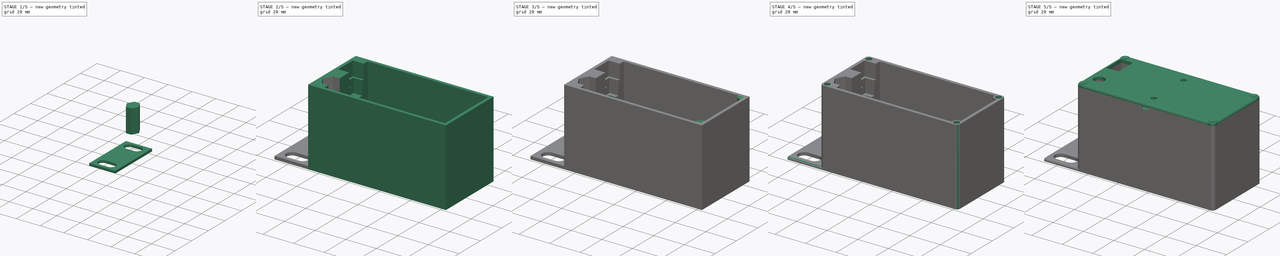
[diagram: build sequence overview — one tinted view per stage of 5, left to right]
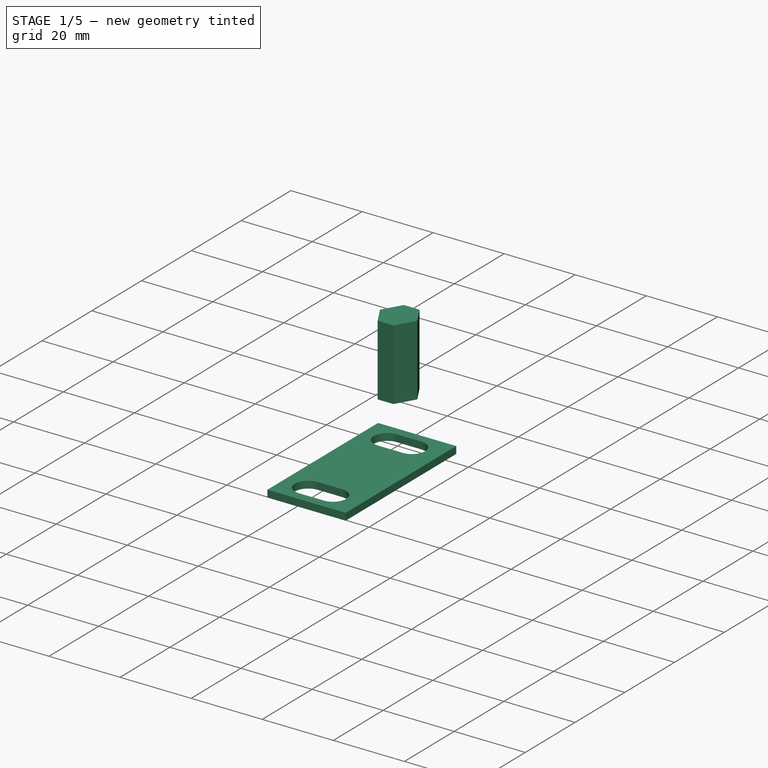
[diagram: stage 1 of 5 — iso view after this stage's code; geometry added in this stage tinted green]
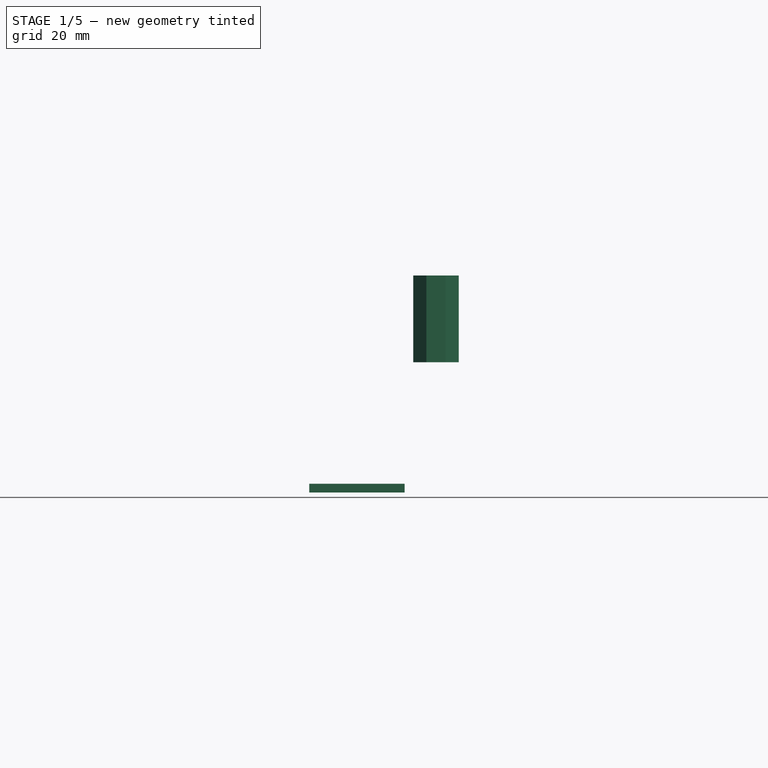
[diagram: stage 1 of 5 — front view after this stage's code; geometry added in this stage tinted green]
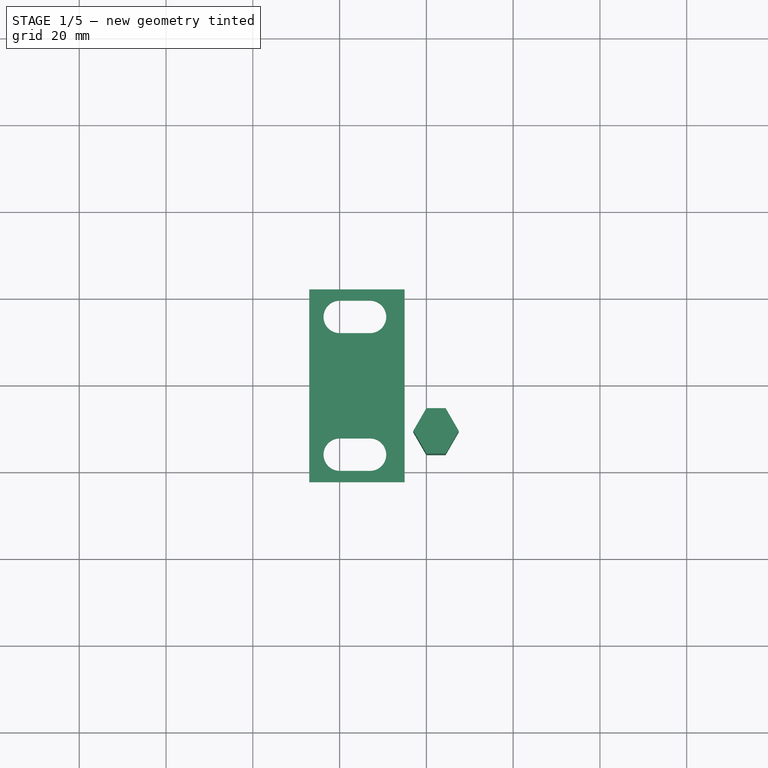
[diagram: stage 1 of 5 — top view after this stage's code; geometry added in this stage tinted green]
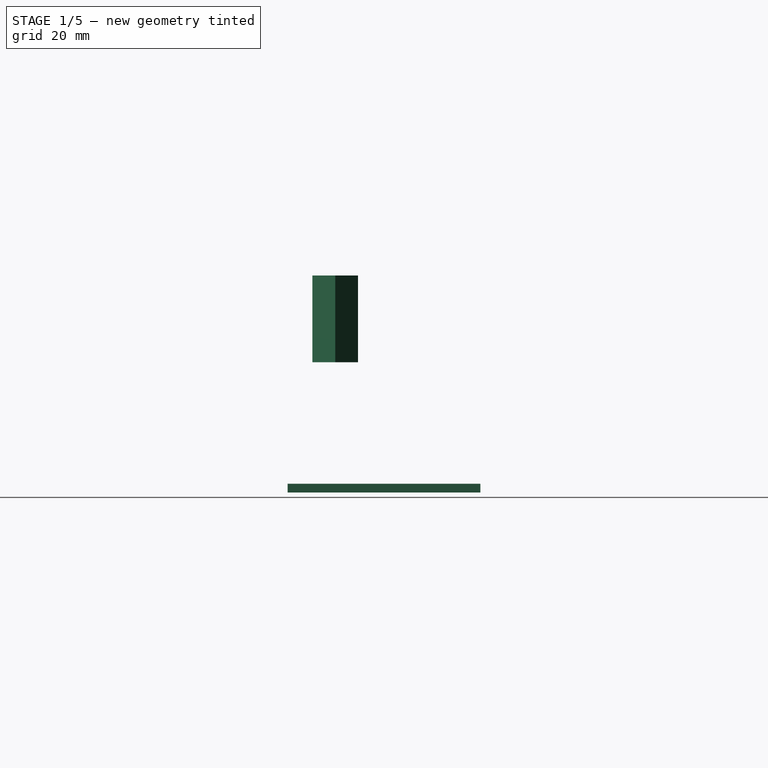
[diagram: stage 1 of 5 — right view after this stage's code; geometry added in this stage tinted green]
FCSTD DOCUMENT  (FreeCAD 0.21R33694 (Git))
Label: rack-controller-box
License: All rights reserved
LicenseURL: https://en.wikipedia.org/wiki/All_rights_reserved
objects: Sketcher::SketchObject×15, Part::Extrusion×15, Part::Cut×11, Part::Fillet×7, Part::MultiFuse×5, Part::Mirroring×4, Part::Fuse×1, Part::Chamfer×1, PartDesign::Body×1
note: 60 computed .brp shape members not serialized (recipe doc carries the construction recipe); baked Part::Feature solids carry a one-line shape summary decoded from their .brp

FEATURE [Sketcher::SketchObject] Sketch  label="Core001"
  FullyConstrained = true
  MapMode = 5
  Support = -> [XY_Plane]
  sketch-geometry (4):
    g0: LineSegment StartX=-45 StartY=22.225 StartZ=0 EndX=45 EndY=22.225 EndZ=0
    g1: LineSegment StartX=45 StartY=22.225 StartZ=0 EndX=45 EndY=-22.225 EndZ=0
    g2: LineSegment StartX=45 StartY=-22.225 StartZ=0 EndX=-45 EndY=-22.225 EndZ=0
    g3: LineSegment StartX=-45 StartY=-22.225 StartZ=0 EndX=-45 EndY=22.225 EndZ=0
  constraints (10):
    c: Coincident(g0,g1)
    c: Coincident(g1,g2)
    c: Coincident(g2,g3)
    c: Coincident(g3,g0)
    c: Horizontal(g2)
    c: Vertical(g1)
    c: Symmetric(g0,g2,g-1)
    c: Symmetric(g0,g0,g-2)
    c: DistanceX(g0,g0) = 90
    c: DistanceY(g1,g1) = 44.45
FEATURE [Part::Extrusion] Extrude  label="Core"
  Base = -> Sketch
  Dir = (0,0,1)
  DirMode = 2
  FaceMakerClass = Part::FaceMakerBullseye
  LengthFwd = 50
  LengthRev = 0
  Solid = true
  Symmetric = false
FEATURE [Sketcher::SketchObject] Sketch001  label="Display"
  FullyConstrained = true
  MapMode = 5
  Support = -> [XY_Plane]
  sketch-geometry (4):
    g0: LineSegment StartX=-12.5 StartY=6.5 StartZ=0 EndX=12.5 EndY=6.5 EndZ=0
    g1: LineSegment StartX=12.5 StartY=6.5 StartZ=0 EndX=12.5 EndY=-6.5 EndZ=0
    g2: LineSegment StartX=12.5 StartY=-6.5 StartZ=0 EndX=-12.5 EndY=-6.5 EndZ=0
    g3: LineSegment StartX=-12.5 StartY=-6.5 StartZ=0 EndX=-12.5 EndY=6.5 EndZ=0
  constraints (10):
    c: Coincident(g0,g1)
    c: Coincident(g1,g2)
    c: Coincident(g2,g3)
    c: Coincident(g3,g0)
    c: Horizontal(g2)
    c: Vertical(g1)
    c: Symmetric(g0,g2,g-1)
    c: Symmetric(g0,g0,g-2)
    c: DistanceX(g0,g0) = 25
    c: DistanceY(g1,g1) = 13
FEATURE [Part::Extrusion] Extrude001  label="Display Hole"
  Base = -> Sketch001
  Dir = (0,0,1)
  DirMode = 2
  FaceMakerClass = Part::FaceMakerBullseye
  LengthFwd = 10
  LengthRev = 0
  Solid = true
  Symmetric = false
FEATURE [Part::Cut] Cut  label="Core with display"
  Base = -> Extrude
  Tool = -> Extrude001
FEATURE [Sketcher::SketchObject] Sketch002  label="Core hole"
  FullyConstrained = true
  MapMode = 5
  Support = -> [XY_Plane]
  expr: Constraints[16] = Sketch.Constraints[8]
  expr: Constraints[17] = Sketch.Constraints[9]
  sketch-geometry (8):
    g0: LineSegment StartX=-35.75 StartY=20.225 StartZ=0 EndX=43 EndY=20.225 EndZ=0
    g1: LineSegment StartX=43 StartY=20.225 StartZ=0 EndX=43 EndY=-20.225 EndZ=0
    g2: LineSegment StartX=43 StartY=-20.225 StartZ=0 EndX=-35.75 EndY=-20.225 EndZ=0
    g3: LineSegment StartX=-35.75 StartY=-20.225 StartZ=0 EndX=-35.75 EndY=20.225 EndZ=0
    g4: LineSegment StartX=-45 StartY=22.225 StartZ=0 EndX=45 EndY=22.225 EndZ=0
    g5: LineSegment StartX=45 StartY=22.225 StartZ=0 EndX=45 EndY=-22.225 EndZ=0
    g6: LineSegment StartX=45 StartY=-22.225 StartZ=0 EndX=-45 EndY=-22.225 EndZ=0
    g7: LineSegment StartX=-45 StartY=-22.225 StartZ=0 EndX=-45 EndY=22.225 EndZ=0
  constraints (21):
    c: Coincident(g0,g1)
    c: Coincident(g1,g2)
    c: Coincident(g2,g3)
    c: Coincident(g3,g0)
    c: Horizontal(g0)
    c: Horizontal(g2)
    c: Vertical(g1)
    c: Symmetric(g0,g2,g-1)
    c: Coincident(g4,g5)
    c: Coincident(g5,g6)
    c: Coincident(g6,g7)
    c: Coincident(g7,g4)
    c: Horizontal(g6)
    c: Vertical(g5)
    c: Symmetric(g4,g6,g-1)
    c: Symmetric(g4,g4,g-2)
    c: DistanceX(g4,g4) = 90
    c: DistanceY(g5,g5) = 44.45
    c: DistanceY(g0,g4) = 2
    c: DistanceX(g0,g4) = 2
    c: DistanceX(g4,g0) = 9.25
FEATURE [Part::Extrusion] Extrude002  label="Core hole001"
  Base = -> Sketch002
  Dir = (0,0,1)
  DirMode = 2
  FaceMakerClass = Part::FaceMakerBullseye
  LengthFwd = 100
  LengthRev = -2
  Solid = true
  Symmetric = false
FEATURE [Part::Cut] Cut001  label="Core with core hole"
  Base = -> Cut
  Tool = -> Extrude002
FEATURE [Sketcher::SketchObject] Sketch004  label="Display base"
  FullyConstrained = true
  MapMode = 5
  Support = -> [XY_Plane]
  sketch-geometry (4):
    g0: LineSegment StartX=-12.5 StartY=13.5 StartZ=0 EndX=12.5 EndY=13.5 EndZ=0
    g1: LineSegment StartX=12.5 StartY=13.5 StartZ=0 EndX=12.5 EndY=-13.5 EndZ=0
    g2: LineSegment StartX=12.5 StartY=-13.5 StartZ=0 EndX=-12.5 EndY=-13.5 EndZ=0
    g3: LineSegment StartX=-12.5 StartY=-13.5 StartZ=0 EndX=-12.5 EndY=13.5 EndZ=0
  constraints (10):
    c: Coincident(g0,g1)
    c: Coincident(g1,g2)
    c: Coincident(g2,g3)
    c: Coincident(g3,g0)
    c: Horizontal(g2)
    c: Vertical(g1)
    c: Symmetric(g0,g2,g-1)
    c: Symmetric(g0,g0,g-2)
    c: DistanceX(g0,g0) = 25
    c: DistanceY(g1,g1) = 27
FEATURE [Part::Extrusion] Extrude003  label="Display base001"
  Base = -> Sketch004
  Dir = (0,0,1)
  DirMode = 2
  FaceMakerClass = Part::FaceMakerBullseye
  LengthFwd = 3.5
  LengthRev = -0.5
  Solid = true
  Symmetric = false
FEATURE [Part::Cut] Cut002  label="Box with display"
  Base = -> Cut001
  Tool = -> Extrude003
FEATURE [Sketcher::SketchObject] Sketch005  label="Power connector hex001"
  FullyConstrained = true
  MapMode = 5
  Placement = pos=(0,0,50) rot=(0,0,1;0rad)
  Support = -> [Cut002]
  sketch-geometry (6):
    g0: LineSegment StartX=-40 StartY=-6 StartZ=0 EndX=-35.5622 EndY=-6 EndZ=0
    g1: LineSegment StartX=-35.5622 StartY=-6 StartZ=0 EndX=-32.5311 EndY=-11.25 EndZ=0
    g2: LineSegment StartX=-32.5311 StartY=-11.25 StartZ=0 EndX=-35.5622 EndY=-16.5 EndZ=0
    g3: LineSegment StartX=-35.5622 StartY=-16.5 StartZ=0 EndX=-40 EndY=-16.5 EndZ=0
    g4: LineSegment StartX=-40 StartY=-16.5 StartZ=0 EndX=-43.0311 EndY=-11.25 EndZ=0
    g5: LineSegment StartX=-43.0311 StartY=-11.25 StartZ=0 EndX=-40 EndY=-6 EndZ=0
  constraints (18):
    c: Horizontal(g0)
    c: Coincident(g1,g0)
    c: Coincident(g2,g1)
    c: Coincident(g3,g2)
    c: Coincident(g4,g3)
    c: Coincident(g5,g0)
    c: Parallel(g5,g2)
    c: Parallel(g0,g3)
    c: Parallel(g1,g4)
    c: Coincident(g5,g4)
    c: Vertical(g0,g3)
    c: Vertical(g0,g2)
    c: Horizontal(g1,g4)
    c: DistanceX(g4,g1) = 10.5
    c: DistanceY(g2,g0) = 10.5
    c: Angle(g5,g0) = 2.0944
    c: DistanceY(g0,g-1) = 6
    c: DistanceX(g0,g-1) = 40
FEATURE [Part::Extrusion] Extrude004  label="Power connector hex"
  Base = -> Sketch005
  Dir = (0,0,1)
  DirMode = 2
  FaceMakerClass = Part::FaceMakerBullseye
  LengthFwd = 20
  LengthRev = 0
  Reversed = true
  Solid = true
  Symmetric = false
FEATURE [Sketcher::SketchObject] Sketch013  label="Rack mount"
  FullyConstrained = true
  MapMode = 5
  Support = -> [XY_Plane]
  expr: Constraints[30] = 3.3 mm + Constraints[27] / 2
  expr: Constraints[37] = Constraints[29]
  expr: Constraints[38] = Constraints[28]
  expr: Constraints[39] = Constraints[27]
  expr: Constraints[40] = Constraints[30]
  expr: Constraints[8] = Sketch.Constraints[8]
  expr: Constraints[9] = Sketch.Constraints[9]
  sketch-geometry (16):
    g0: LineSegment StartX=-45 StartY=22.225 StartZ=0 EndX=45 EndY=22.225 EndZ=0
    g1: LineSegment StartX=45 StartY=22.225 StartZ=0 EndX=45 EndY=-22.225 EndZ=0
    g2: LineSegment StartX=45 StartY=-22.225 StartZ=0 EndX=-45 EndY=-22.225 EndZ=0
    g3: LineSegment StartX=-45 StartY=-22.225 StartZ=0 EndX=-45 EndY=22.225 EndZ=0
    g4: LineSegment StartX=-45 StartY=22.225 StartZ=0 EndX=-67 EndY=22.225 EndZ=0
    g5: LineSegment StartX=-67 StartY=22.225 StartZ=0 EndX=-67 EndY=-22.225 EndZ=0
    g6: LineSegment StartX=-67 StartY=-22.225 StartZ=0 EndX=-45 EndY=-22.225 EndZ=0
    g7: LineSegment StartX=-45 StartY=-22.225 StartZ=0 EndX=-45 EndY=22.225 EndZ=0
    g8: ArcOfCircle CenterX=-59.95 CenterY=15.875 CenterZ=0 NormalX=0 NormalY=0 NormalZ=1 AngleXU=0 Radius=3.75 StartAngle=1.5708 EndAngle=4.71239
    g9: ArcOfCircle CenterX=-53 CenterY=15.875 CenterZ=0 NormalX=0 NormalY=0 NormalZ=1 AngleXU=0 Radius=3.75 StartAngle=4.71239 EndAngle=7.85398
    g10: LineSegment StartX=-59.95 StartY=12.125 StartZ=0 EndX=-53 EndY=12.125 EndZ=0
    g11: LineSegment StartX=-53 StartY=19.625 StartZ=0 EndX=-59.95 EndY=19.625 EndZ=0
    g12: ArcOfCircle CenterX=-59.95 CenterY=-15.875 CenterZ=0 NormalX=0 NormalY=0 NormalZ=1 AngleXU=0 Radius=3.75 StartAngle=1.5708 EndAngle=4.71239
    g13: ArcOfCircle CenterX=-53 CenterY=-15.875 CenterZ=0 NormalX=0 NormalY=0 NormalZ=1 AngleXU=0 Radius=3.75 StartAngle=4.71239 EndAngle=7.85398
    g14: LineSegment StartX=-59.95 StartY=-12.125 StartZ=0 EndX=-53 EndY=-12.125 EndZ=0
    g15: LineSegment StartX=-53 StartY=-19.625 StartZ=0 EndX=-59.95 EndY=-19.625 EndZ=0
  constraints (41):
    c: Coincident(g0,g1)
    c: Coincident(g1,g2)
    c: Coincident(g2,g3)
    c: Coincident(g3,g0)
    c: Horizontal(g2)
    c: Vertical(g1)
    c: Symmetric(g0,g2,g-1)
    c: Symmetric(g0,g0,g-2)
    c: DistanceX(g0,g0) = 90
    c: DistanceY(g1,g1) = 44.45
    c: Coincident(g4,g5)
    c: Coincident(g5,g6)
    c: Coincident(g6,g7)
    c: Coincident(g7,g4)
    c: Horizontal(g4)
    c: Horizontal(g6)
    c: Vertical(g5)
    c: Vertical(g7)
    c: Coincident(g6,g2)
    c: PointOnObject(g4,g0)
    c: DistanceX(g4,g4) = 22
    c: Tangent(g8,g10) = -1.5708
    c: Tangent(g10,g9) = -1.5708
    c: Tangent(g9,g11) = -1.5708
    c: Tangent(g11,g8) = -1.5708
    c: Equal(g8,g9)
    c: Horizontal(g11)
    c: DistanceY(g8,g8) = 7.5
    c: DistanceX(g9,g4) = 8
    c: DistanceY(g8,g4) = 2.6
    c: DistanceX(g4,g8) = 7.05
    c: Tangent(g12,g14) = 1.5708
    c: Tangent(g14,g13) = 1.5708
    c: Tangent(g13,g15) = 1.5708
    c: Tangent(g15,g12) = 1.5708
    c: Equal(g12,g13)
    c: Horizontal(g15)
    c: DistanceY(g5,g12) = 2.6
    c: DistanceX(g13,g6) = 8
    c: DistanceY(g13,g13) = 7.5
    c: DistanceX(g5,g12) = 7.05
FEATURE [Part::Extrusion] Extrude013
  Base = -> Sketch013
  Dir = (0,0,1)
  DirMode = 2
  FaceMakerClass = Part::FaceMakerBullseye
  LengthFwd = 2
  LengthRev = 0
  Solid = true
  Symmetric = false
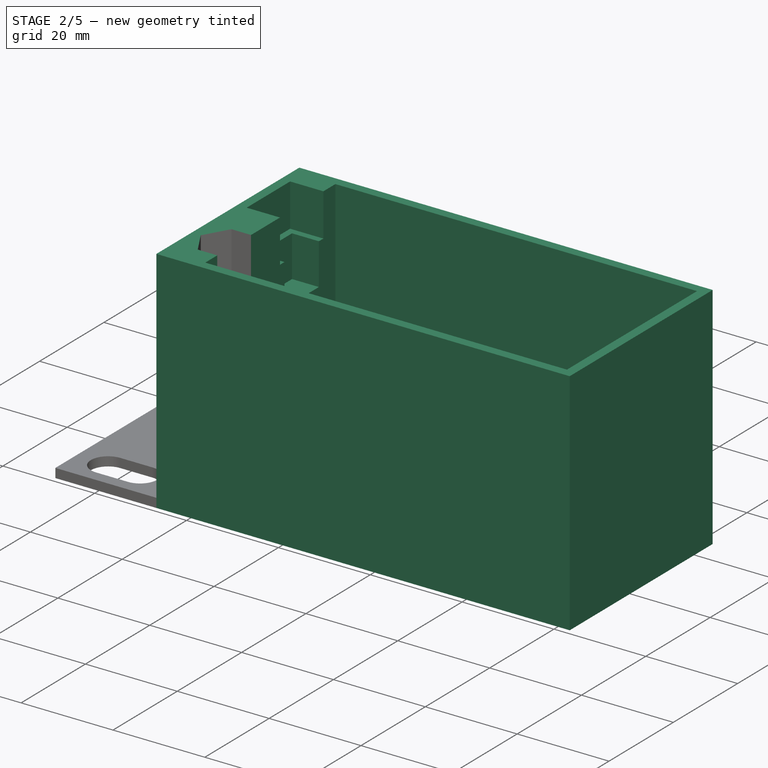
[diagram: stage 2 of 5 — iso view after this stage's code; geometry added in this stage tinted green]
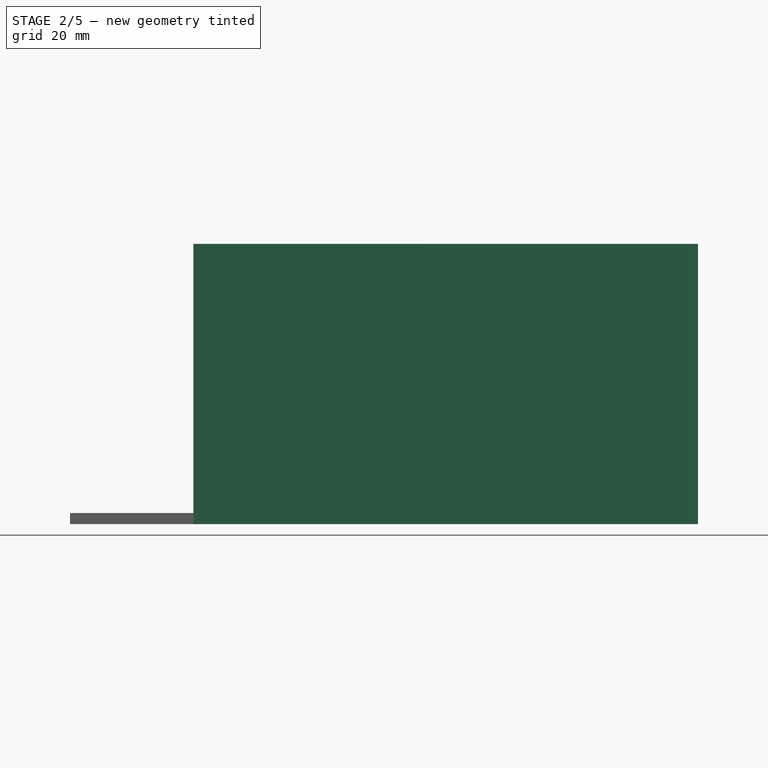
[diagram: stage 2 of 5 — front view after this stage's code; geometry added in this stage tinted green]
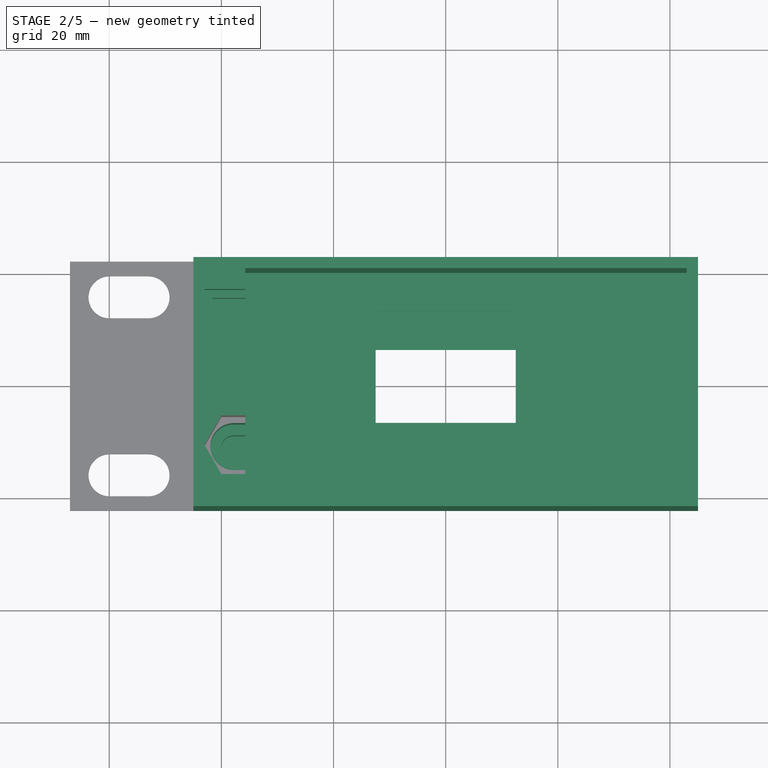
[diagram: stage 2 of 5 — top view after this stage's code; geometry added in this stage tinted green]
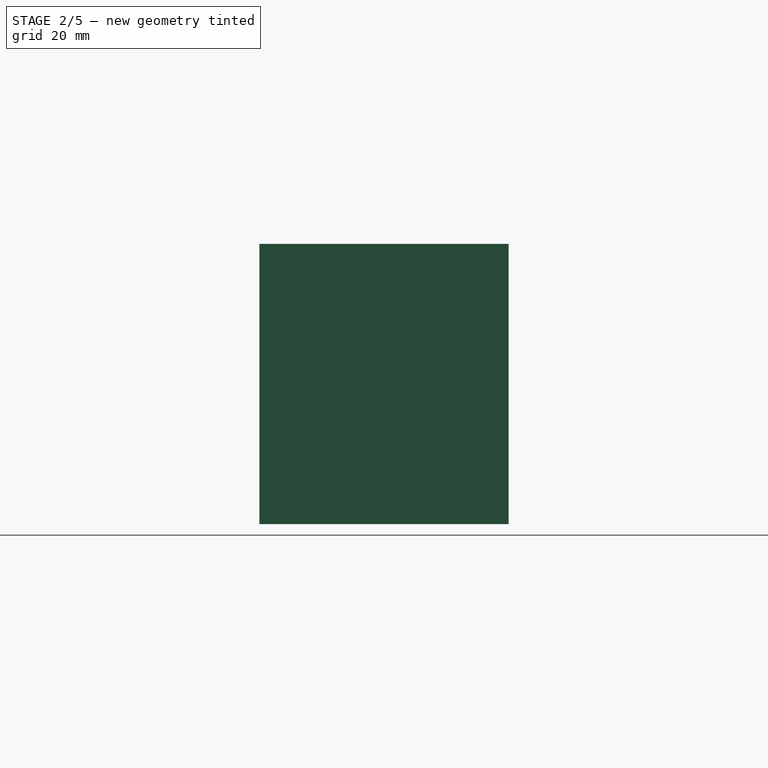
[diagram: stage 2 of 5 — right view after this stage's code; geometry added in this stage tinted green]
FEATURE [Part::Cut] Cut003  label="Core with power connector hex"
  Base = -> Cut002
  Tool = -> Extrude004
FEATURE [Sketcher::SketchObject] Sketch006  label="Power connector cilinder"
  FullyConstrained = true
  MapMode = 5
  Placement = pos=(0,0,30) rot=(0,0,1;0rad)
  Support = -> [Cut003]
  expr: Constraints[13] = Sketch005.Constraints[13]
  expr: Constraints[14] = Sketch005.Constraints[14]
  expr: Constraints[15] = Sketch005.Constraints[15]
  expr: Constraints[16] = Sketch005.Constraints[16]
  expr: Constraints[17] = Sketch005.Constraints[17]
  sketch-geometry (10):
    g0: LineSegment StartX=-40 StartY=-6 StartZ=0 EndX=-35.5622 EndY=-6 EndZ=0
    g1: LineSegment StartX=-35.5622 StartY=-6 StartZ=0 EndX=-32.5311 EndY=-11.25 EndZ=0
    g2: LineSegment StartX=-32.5311 StartY=-11.25 StartZ=0 EndX=-35.5622 EndY=-16.5 EndZ=0
    g3: LineSegment StartX=-35.5622 StartY=-16.5 StartZ=0 EndX=-40 EndY=-16.5 EndZ=0
    g4: LineSegment StartX=-40 StartY=-16.5 StartZ=0 EndX=-43.0311 EndY=-11.25 EndZ=0
    g5: LineSegment StartX=-43.0311 StartY=-11.25 StartZ=0 EndX=-40 EndY=-6 EndZ=0
    g6: ArcOfCircle CenterX=-37.7811 CenterY=-11.25 CenterZ=0 NormalX=0 NormalY=0 NormalZ=1 AngleXU=0 Radius=4.2 StartAngle=1.5708 EndAngle=4.71239
    g7: LineSegment StartX=-37.7811 StartY=-7.05 StartZ=0 EndX=-32.5311 EndY=-7.05 EndZ=0
    g8: LineSegment StartX=-32.5311 StartY=-7.05 StartZ=0 EndX=-32.5311 EndY=-15.45 EndZ=0
    g9: LineSegment StartX=-32.5311 StartY=-15.45 StartZ=0 EndX=-37.7811 EndY=-15.45 EndZ=0
  constraints (28):
    c: Horizontal(g0)
    c: Coincident(g1,g0)
    c: Coincident(g2,g1)
    c: Coincident(g3,g2)
    c: Coincident(g4,g3)
    c: Coincident(g5,g0)
    c: Parallel(g5,g2)
    c: Parallel(g0,g3)
    c: Parallel(g1,g4)
    c: Coincident(g5,g4)
    c: Vertical(g0,g3)
    c: Vertical(g0,g2)
    c: Horizontal(g1,g4)
    c: DistanceX(g4,g1) = 10.5
    c: DistanceY(g2,g0) = 10.5
    c: Angle(g5,g0) = 2.0944
    c: DistanceY(g0,g-1) = 6
    c: DistanceX(g0,g-1) = 40
    c: Symmetric(g1,g4,g6)
    c: Diameter(g6) = 8.4
    c: Coincident(g7,g8)
    c: Coincident(g8,g9)
    c: Horizontal(g7)
    c: Horizontal(g9)
    c: Vertical(g8)
    c: PointOnObject(g1,g8)
    c: Tangent(g6,g9) = 1.5708
    c: Tangent(g6,g7) = 1.5708
FEATURE [Part::Extrusion] Extrude005
  Base = -> Sketch006
  Dir = (0,0,1)
  DirMode = 2
  FaceMakerClass = Part::FaceMakerBullseye
  LengthFwd = 16
  LengthRev = 0
  Reversed = true
  Solid = true
  Symmetric = false
FEATURE [Part::Cut] Cut004  label="Core with power connector cilinder"
  Base = -> Cut003
  Tool = -> Extrude005
FEATURE [Sketcher::SketchObject] Sketch007  label="Power connector cable"
  FullyConstrained = true
  MapMode = 5
  Placement = pos=(0,0,14) rot=(0,0,1;0rad)
  Support = -> [Cut004]
  expr: Constraints[13] = Sketch006.Constraints[13]
  expr: Constraints[14] = Sketch006.Constraints[14]
  expr: Constraints[15] = Sketch006.Constraints[15]
  expr: Constraints[16] = Sketch006.Constraints[16]
  expr: Constraints[17] = Sketch006.Constraints[17]
  sketch-geometry (10):
    g0: LineSegment StartX=-40 StartY=-6 StartZ=0 EndX=-35.5622 EndY=-6 EndZ=0
    g1: LineSegment StartX=-35.5622 StartY=-6 StartZ=0 EndX=-32.5311 EndY=-11.25 EndZ=0
    g2: LineSegment StartX=-32.5311 StartY=-11.25 StartZ=0 EndX=-35.5622 EndY=-16.5 EndZ=0
    g3: LineSegment StartX=-35.5622 StartY=-16.5 StartZ=0 EndX=-40 EndY=-16.5 EndZ=0
    g4: LineSegment StartX=-40 StartY=-16.5 StartZ=0 EndX=-43.0311 EndY=-11.25 EndZ=0
    g5: LineSegment StartX=-43.0311 StartY=-11.25 StartZ=0 EndX=-40 EndY=-6 EndZ=0
    g6: ArcOfCircle CenterX=-37.7811 CenterY=-11.25 CenterZ=0 NormalX=0 NormalY=0 NormalZ=1 AngleXU=0 Radius=2.275 StartAngle=1.5708 EndAngle=4.71239
    g7: LineSegment StartX=-37.7811 StartY=-8.975 StartZ=0 EndX=-32.5311 EndY=-8.975 EndZ=0
    g8: LineSegment StartX=-32.5311 StartY=-8.975 StartZ=0 EndX=-32.5311 EndY=-13.525 EndZ=0
    g9: LineSegment StartX=-32.5311 StartY=-13.525 StartZ=0 EndX=-37.7811 EndY=-13.525 EndZ=0
  constraints (28):
    c: Horizontal(g0)
    c: Coincident(g1,g0)
    c: Coincident(g2,g1)
    c: Coincident(g3,g2)
    c: Coincident(g4,g3)
    c: Coincident(g5,g0)
    c: Parallel(g5,g2)
    c: Parallel(g0,g3)
    c: Parallel(g1,g4)
    c: Coincident(g5,g4)
    c: Vertical(g0,g3)
    c: Vertical(g0,g2)
    c: Horizontal(g1,g4)
    c: DistanceX(g4,g1) = 10.5
    c: DistanceY(g2,g0) = 10.5
    c: Angle(g5,g0) = 2.0944
    c: DistanceY(g0,g-1) = 6
    c: DistanceX(g0,g-1) = 40
    c: Symmetric(g1,g4,g6)
    c: Diameter(g6) = 4.55
    c: Coincident(g7,g8)
    c: Coincident(g8,g9)
    c: Horizontal(g7)
    c: Horizontal(g9)
    c: Vertical(g8)
    c: PointOnObject(g1,g8)
    c: Tangent(g6,g9) = 1.5708
    c: Tangent(g6,g7) = 1.5708
FEATURE [Part::Extrusion] Extrude006  label="Power connector cable hole"
  Base = -> Sketch007
  Dir = (0,0,1)
  DirMode = 2
  FaceMakerClass = Part::FaceMakerBullseye
  LengthFwd = 10
  LengthRev = 0
  Reversed = true
  Solid = true
  Symmetric = false
FEATURE [Part::Cut] Cut005  label="Core with power connector cable hole"
  Base = -> Cut004
  Tool = -> Extrude006
FEATURE [Sketcher::SketchObject] Sketch008  label="Fan connector 1 001"
  FullyConstrained = true
  MapMode = 5
  Placement = pos=(0,0,50) rot=(0,0,1;0rad)
  Support = -> [Cut005]
  expr: Constraints[18] = Sketch.Constraints[8]
  expr: Constraints[19] = Sketch.Constraints[9]
  sketch-geometry (8):
    g0: LineSegment StartX=-43 StartY=16.5 StartZ=0 EndX=-35 EndY=16.5 EndZ=0
    g1: LineSegment StartX=-35 StartY=16.5 StartZ=0 EndX=-35 EndY=3 EndZ=0
    g2: LineSegment StartX=-35 StartY=3 StartZ=0 EndX=-43 EndY=3 EndZ=0
    g3: LineSegment StartX=-43 StartY=3 StartZ=0 EndX=-43 EndY=16.5 EndZ=0
    g4: LineSegment StartX=-45 StartY=22.225 StartZ=0 EndX=45 EndY=22.225 EndZ=0
    g5: LineSegment StartX=45 StartY=22.225 StartZ=0 EndX=45 EndY=-22.225 EndZ=0
    g6: LineSegment StartX=45 StartY=-22.225 StartZ=0 EndX=-45 EndY=-22.225 EndZ=0
    g7: LineSegment StartX=-45 StartY=-22.225 StartZ=0 EndX=-45 EndY=22.225 EndZ=0
  constraints (22):
    c: Coincident(g0,g1)
    c: Coincident(g1,g2)
    c: Coincident(g2,g3)
    c: Coincident(g3,g0)
    c: Horizontal(g0)
    c: Horizontal(g2)
    c: Vertical(g1)
    c: Vertical(g3)
    c: DistanceX(g0,g0) = 8
    c: DistanceY(g3,g3) = 13.5
    c: Coincident(g4,g5)
    c: Coincident(g5,g6)
    c: Coincident(g6,g7)
    c: Coincident(g7,g4)
    c: Horizontal(g6)
    c: Vertical(g5)
    c: Symmetric(g4,g6,g-1)
    c: Symmetric(g4,g4,g-2)
    c: DistanceX(g4,g4) = 90
    c: DistanceY(g5,g5) = 44.45
    c: DistanceX(g4,g0) = 2
    c: DistanceY(g-1,g1) = 3
FEATURE [Part::Extrusion] Extrude007  label="Fan connector 1"
  Base = -> Sketch008
  Dir = (0,0,1)
  DirMode = 2
  FaceMakerClass = Part::FaceMakerBullseye
  LengthFwd = 9.3
  LengthRev = 0
  Reversed = true
  Solid = true
  Symmetric = false
FEATURE [Part::Cut] Cut006  label="Core with fan connector"
  Base = -> Cut005
  Tool = -> Extrude007
FEATURE [Sketcher::SketchObject] Sketch009  label="Fan connector 2"
  FullyConstrained = true
  MapMode = 5
  Placement = pos=(0,0,40.7) rot=(0,0,1;0rad)
  Support = -> [Cut006]
  expr: Constraints[18] = Sketch008.Constraints[18]
  expr: Constraints[19] = Sketch008.Constraints[19]
  expr: Constraints[20] = Sketch008.Constraints[20]
  expr: Constraints[21] = Sketch008.Constraints[21]
  expr: Constraints[38] = 5.2 / 2
  expr: Constraints[8] = Sketch008.Constraints[8]
  expr: Constraints[9] = Sketch008.Constraints[9]
  sketch-geometry (14):
    g0: LineSegment StartX=-43 StartY=16.5 StartZ=0 EndX=-35 EndY=16.5 EndZ=0
    g1: LineSegment StartX=-35 StartY=16.5 StartZ=0 EndX=-35 EndY=3 EndZ=0
    g2: LineSegment StartX=-35 StartY=3 StartZ=0 EndX=-43 EndY=3 EndZ=0
    g3: LineSegment StartX=-43 StartY=3 StartZ=0 EndX=-43 EndY=16.5 EndZ=0
    g4: LineSegment StartX=-45 StartY=22.225 StartZ=0 EndX=45 EndY=22.225 EndZ=0
    g5: LineSegment StartX=45 StartY=22.225 StartZ=0 EndX=45 EndY=-22.225 EndZ=0
    g6: LineSegment StartX=45 StartY=-22.225 StartZ=0 EndX=-45 EndY=-22.225 EndZ=0
    g7: LineSegment StartX=-45 StartY=-22.225 StartZ=0 EndX=-45 EndY=22.225 EndZ=0
    g8: LineSegment StartX=-41.6 StartY=15.1 StartZ=0 EndX=-35 EndY=15.1 EndZ=0
    g9: LineSegment StartX=-35 StartY=15.1 StartZ=0 EndX=-35 EndY=4.4 EndZ=0
    g10: LineSegment StartX=-35 StartY=4.4 StartZ=0 EndX=-41.6 EndY=4.4 EndZ=0
    g11: LineSegment StartX=-41.6 StartY=4.4 StartZ=0 EndX=-41.6 EndY=15.1 EndZ=0
    g12: LineSegment StartX=-41.6 StartY=9.75 StartZ=0 EndX=-35 EndY=9.75 EndZ=0
    g13: LineSegment StartX=-39 StartY=3 StartZ=0 EndX=-39 EndY=16.5 EndZ=0
  constraints (39):
    c: Coincident(g0,g1)
    c: Coincident(g1,g2)
    c: Coincident(g2,g3)
    c: Coincident(g3,g0)
    c: Horizontal(g0)
    c: Horizontal(g2)
    c: Vertical(g1)
    c: Vertical(g3)
    c: DistanceX(g0,g0) = 8
    c: DistanceY(g3,g3) = 13.5
    c: Coincident(g4,g5)
    c: Coincident(g5,g6)
    c: Coincident(g6,g7)
    c: Coincident(g7,g4)
    c: Horizontal(g6)
    c: Vertical(g5)
    c: Symmetric(g4,g6,g-1)
    c: Symmetric(g4,g4,g-2)
    c: DistanceX(g4,g4) = 90
    c: DistanceY(g5,g5) = 44.45
    c: DistanceX(g4,g0) = 2
    c: DistanceY(g-1,g1) = 3
    c: Coincident(g8,g9)
    c: Coincident(g9,g10)
    c: Coincident(g10,g11)
    c: Coincident(g11,g8)
    c: Horizontal(g8)
    c: Horizontal(g10)
    c: Vertical(g9)
    c: Vertical(g11)
    c: PointOnObject(g8,g1)
    c: Horizontal(g12)
    c: Symmetric(g0,g1,g12)
    c: Symmetric(g8,g10,g12)
    c: DistanceY(g11,g11) = 10.7
    c: Vertical(g13)
    c: Symmetric(g0,g0,g13)
    c: PointOnObject(g13,g2)
    c: DistanceX(g8,g13) = 2.6
FEATURE [Part::Extrusion] Extrude008  label="Fan connector 003"
  Base = -> Sketch009
  Dir = (0,0,1)
  DirMode = 2
  FaceMakerClass = Part::FaceMakerBullseye
  LengthFwd = 9
  LengthRev = 0
  Reversed = true
  Solid = true
  Symmetric = false
FEATURE [Part::Cut] Cut007  label="Core with fan connector 2"
  Base = -> Cut006
  Tool = -> Extrude008
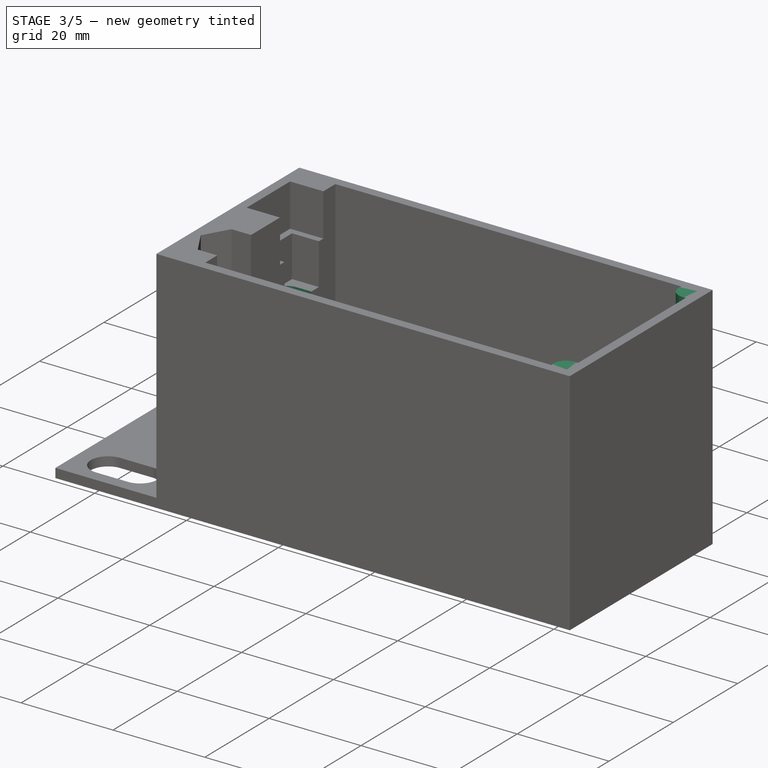
[diagram: stage 3 of 5 — iso view after this stage's code; geometry added in this stage tinted green]
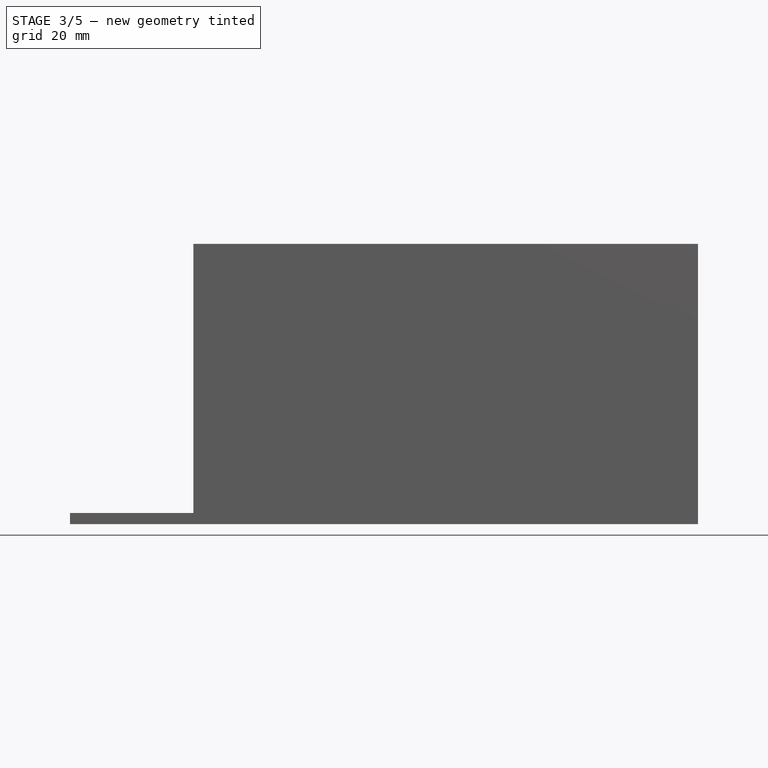
[diagram: stage 3 of 5 — front view after this stage's code; geometry added in this stage tinted green]
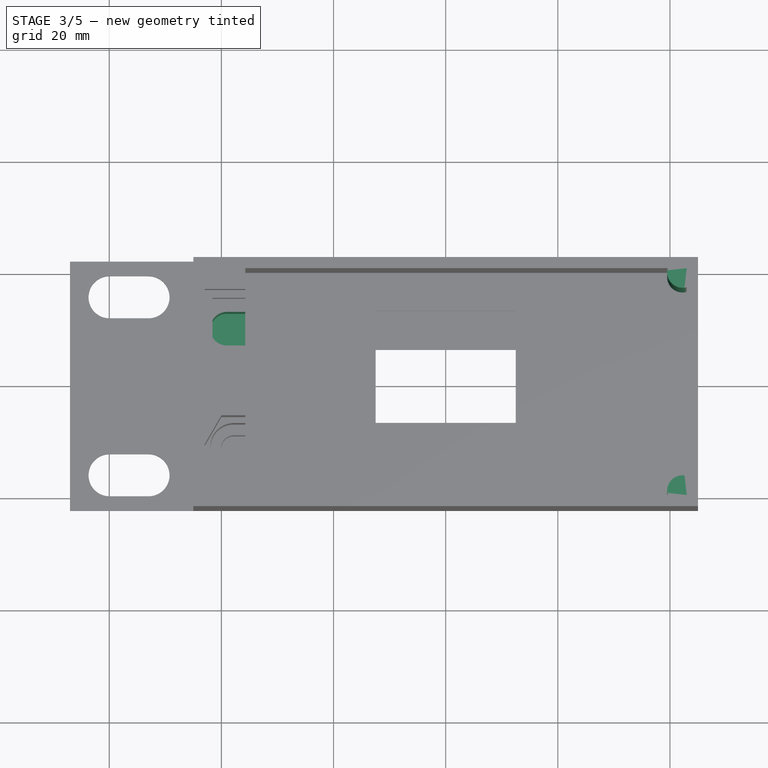
[diagram: stage 3 of 5 — top view after this stage's code; geometry added in this stage tinted green]
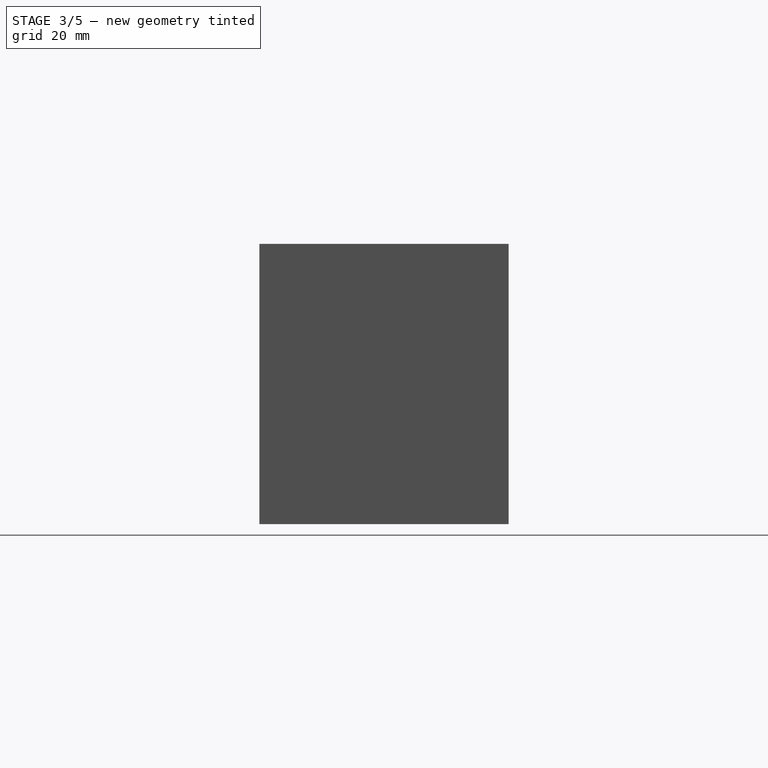
[diagram: stage 3 of 5 — right view after this stage's code; geometry added in this stage tinted green]
FEATURE [Sketcher::SketchObject] Sketch010  label="Fan connector cable"
  FullyConstrained = false
  MapMode = 5
  Placement = pos=(0,0,31.7) rot=(0,0,1;0rad)
  Support = -> [Cut007]
  expr: Constraints[18] = Sketch008.Constraints[18]
  expr: Constraints[19] = Sketch008.Constraints[19]
  expr: Constraints[20] = Sketch008.Constraints[20]
  expr: Constraints[21] = Sketch008.Constraints[21]
  expr: Constraints[45] = Sketch009.Constraints[8]
  expr: Constraints[46] = Sketch009.Constraints[9]
  expr: Constraints[55] = Sketch009.Constraints[18]
  expr: Constraints[56] = Sketch009.Constraints[19]
  expr: Constraints[57] = Sketch009.Constraints[20]
  expr: Constraints[58] = Sketch009.Constraints[21]
  expr: Constraints[68] = Sketch009.Constraints[34]
  expr: Constraints[72] = Sketch009.Constraints[38]
  expr: Constraints[8] = Sketch008.Constraints[8]
  expr: Constraints[9] = Sketch008.Constraints[9]
  sketch-geometry (29):
    g0: ArcOfCircle CenterX=-39 CenterY=9.75 CenterZ=0 NormalX=0 NormalY=0 NormalZ=1 AngleXU=0 Radius=3 StartAngle=1.5708 EndAngle=2.61928
    g1: LineSegment StartX=-43 StartY=16.5 StartZ=0 EndX=-35 EndY=16.5 EndZ=0
    g2: LineSegment StartX=-35 StartY=16.5 StartZ=0 EndX=-35 EndY=3 EndZ=0
    g3: LineSegment StartX=-35 StartY=3 StartZ=0 EndX=-43 EndY=3 EndZ=0
    g4: LineSegment StartX=-43 StartY=3 StartZ=0 EndX=-43 EndY=16.5 EndZ=0
    g5: LineSegment StartX=-45 StartY=22.225 StartZ=0 EndX=45 EndY=22.225 EndZ=0
    g6: LineSegment StartX=45 StartY=22.225 StartZ=0 EndX=45 EndY=-22.225 EndZ=0
    g7: LineSegment StartX=45 StartY=-22.225 StartZ=0 EndX=-45 EndY=-22.225 EndZ=0
    g8: LineSegment StartX=-45 StartY=-22.225 StartZ=0 EndX=-45 EndY=22.225 EndZ=0
    g9: LineSegment StartX=-39 StartY=16.5 StartZ=0 EndX=-39 EndY=3 EndZ=0
    g10: LineSegment StartX=-39 StartY=12.75 StartZ=0 EndX=-35 EndY=12.75 EndZ=0
    g11: LineSegment StartX=-35 StartY=12.75 StartZ=0 EndX=-35 EndY=6.75 EndZ=0
    g12: LineSegment StartX=-35 StartY=6.75 StartZ=0 EndX=-39 EndY=6.75 EndZ=0
    g13: LineSegment StartX=-39 StartY=9.75 StartZ=0 EndX=-35 EndY=9.75 EndZ=0
    g14: LineSegment StartX=-43 StartY=16.5 StartZ=0 EndX=-35 EndY=16.5 EndZ=0
    g15: LineSegment StartX=-35 StartY=16.5 StartZ=0 EndX=-35 EndY=3 EndZ=0
    g16: LineSegment StartX=-35 StartY=3 StartZ=0 EndX=-43 EndY=3 EndZ=0
    g17: LineSegment StartX=-43 StartY=3 StartZ=0 EndX=-43 EndY=16.5 EndZ=0
    g18: LineSegment StartX=-45 StartY=22.225 StartZ=0 EndX=45 EndY=22.225 EndZ=0
    g19: LineSegment StartX=45 StartY=22.225 StartZ=0 EndX=45 EndY=-22.225 EndZ=0
    g20: LineSegment StartX=45 StartY=-22.225 StartZ=0 EndX=-45 EndY=-22.225 EndZ=0
    g21: LineSegment StartX=-45 StartY=-22.225 StartZ=0 EndX=-45 EndY=22.225 EndZ=0
    g22: LineSegment StartX=-41.6 StartY=15.1 StartZ=0 EndX=-35 EndY=15.1 EndZ=0
    g23: LineSegment StartX=-35 StartY=15.1 StartZ=0 EndX=-35 EndY=4.4 EndZ=0
    g24: LineSegment StartX=-35 StartY=4.4 StartZ=0 EndX=-41.5983 EndY=4.4 EndZ=0
    g25: LineSegment StartX=-41.5991 StartY=9.75 StartZ=0 EndX=-35 EndY=9.75 EndZ=0
    g26: LineSegment StartX=-39 StartY=3 StartZ=0 EndX=-39 EndY=16.5 EndZ=0
    g27: ArcOfCircle CenterX=-39 CenterY=9.75 CenterZ=0 NormalX=0 NormalY=0 NormalZ=1 AngleXU=0 Radius=3 StartAngle=3.66391 EndAngle=4.71239
    g28: LineSegment StartX=-41.6 StartY=11.2467 StartZ=0 EndX=-41.6 EndY=8.25334 EndZ=0
  constraints (80):
    c: Coincident(g1,g2)
    c: Coincident(g2,g3)
    c: Coincident(g3,g4)
    c: Coincident(g4,g1)
    c: Horizontal(g1)
    c: Horizontal(g3)
    c: Vertical(g2)
    c: Vertical(g4)
    c: DistanceX(g1,g1) = 8
    c: DistanceY(g4,g4) = 13.5
    c: Coincident(g5,g6)
    c: Coincident(g6,g7)
    c: Coincident(g7,g8)
    c: Coincident(g8,g5)
    c: Horizontal(g7)
    c: Vertical(g6)
    c: Symmetric(g5,g7,g-1)
    c: Symmetric(g5,g5,g-2)
    c: DistanceX(g5,g5) = 90
    c: DistanceY(g6,g6) = 44.45
    c: DistanceX(g5,g1) = 2
    c: DistanceY(g-1,g2) = 3
    c: Symmetric(g1,g1,g9)
    c: Symmetric(g3,g2,g9)
    c: Diameter(g0) = 6
    c: Coincident(g10,g11)
    c: Coincident(g11,g12)
    c: Horizontal(g10)
    c: Horizontal(g12)
    c: Vertical(g11)
    c: Coincident(g27,g12) = 1.5708
    c: Tangent(g0,g10) = 1.5708
    c: PointOnObject(g10,g2)
    c: Horizontal(g13)
    c: Symmetric(g0,g27,g13)
    c: Symmetric(g1,g2,g13)
    c: PointOnObject(g0,g9)
    c: Coincident(g14,g15)
    c: Coincident(g15,g16)
    c: Coincident(g16,g17)
    c: Coincident(g17,g14)
    c: Horizontal(g14)
    c: Horizontal(g16)
    c: Vertical(g15)
    c: Vertical(g17)
    c: DistanceX(g14,g14) = 8
    c: DistanceY(g17,g17) = 13.5
    c: Coincident(g18,g19)
    c: Coincident(g19,g20)
    c: Coincident(g20,g21)
    c: Coincident(g21,g18)
    c: Horizontal(g20)
    c: Vertical(g19)
    c: Symmetric(g18,g20,g-1)
    c: Symmetric(g18,g18,g-2)
    c: DistanceX(g18,g18) = 90
    c: DistanceY(g19,g19) = 44.45
    c: DistanceX(g18,g14) = 2
    c: DistanceY(g-1,g15) = 3
    c: Coincident(g22,g23)
    c: Coincident(g23,g24)
    c: Horizontal(g22)
    c: Horizontal(g24)
    c: Vertical(g23)
    c: PointOnObject(g22,g15)
    c: Horizontal(g25)
    c: Symmetric(g14,g15,g25)
    c: Symmetric(g22,g24,g25)
    c: DistanceY(g24,g22) = 10.7
    c: Vertical(g26)
    c: Symmetric(g14,g14,g26)
    c: PointOnObject(g26,g16)
    c: DistanceX(g22,g26) = 2.6
    c: Equal(g0,g27)
    c: Coincident(g0,g27)
    c: PointOnObject(g12,g9)
    c: Coincident(g28,g0)
    c: Coincident(g28,g27)
    c: Vertical(g0,g22)
    c: Vertical(g27,g0)
FEATURE [Part::Extrusion] Extrude009  label="Fan connector cable hole"
  Base = -> Sketch010
  Dir = (0,0,1)
  DirMode = 2
  FaceMakerClass = Part::FaceMakerBullseye
  LengthFwd = 20
  LengthRev = 0
  Reversed = true
  Solid = true
  Symmetric = false
FEATURE [Part::Cut] Cut008  label="Core with fan connector hole"
  Base = -> Cut007
  Tool = -> Extrude009
FEATURE [Sketcher::SketchObject] Sketch011  label="Screw support"
  FullyConstrained = true
  MapMode = 5
  Placement = pos=(0,0,50) rot=(0,0,1;0rad)
  Support = -> [Cut008]
  expr: Constraints[11] = Constraints[10] / 2
  expr: Constraints[12] = Constraints[10] / 2
  expr: Constraints[8] = Sketch.Constraints[8]
  expr: Constraints[9] = Sketch.Constraints[9]
  sketch-geometry (5):
    g0: LineSegment StartX=-45 StartY=22.225 StartZ=0 EndX=45 EndY=22.225 EndZ=0
    g1: LineSegment StartX=45 StartY=22.225 StartZ=0 EndX=45 EndY=-22.225 EndZ=0
    g2: LineSegment StartX=45 StartY=-22.225 StartZ=0 EndX=-45 EndY=-22.225 EndZ=0
    g3: LineSegment StartX=-45 StartY=-22.225 StartZ=0 EndX=-45 EndY=22.225 EndZ=0
    g4: Circle CenterX=-42.25 CenterY=19.475 CenterZ=0 NormalX=0 NormalY=0 NormalZ=1 AngleXU=0 Radius=2.75
  constraints (13):
    c: Coincident(g0,g1)
    c: Coincident(g1,g2)
    c: Coincident(g2,g3)
    c: Coincident(g3,g0)
    c: Horizontal(g2)
    c: Vertical(g1)
    c: Symmetric(g0,g2,g-1)
    c: Symmetric(g0,g0,g-2)
    c: DistanceX(g0,g0) = 90
    c: DistanceY(g1,g1) = 44.45
    c: Diameter(g4) = 5.5
    c: DistanceY(g4,g0) = 2.75
    c: DistanceX(g0,g4) = 2.75
FEATURE [Part::Extrusion] Extrude010
  Base = -> Sketch011
  Dir = (0,0,1)
  DirMode = 2
  FaceMakerClass = Part::FaceMakerBullseye
  LengthFwd = 50
  LengthRev = 0
  Reversed = true
  Solid = true
  Symmetric = false
FEATURE [Part::Mirroring] Part__Mirroring  label="Extrude010 (Mirror #1)"
  Base = (0,0,0)
  Normal = (0,1,0)
  Source = -> Extrude010
FEATURE [Part::Fuse] Fusion
  Base = -> Extrude010
  Tool = -> Part__Mirroring
FEATURE [Part::Mirroring] Part__Mirroring001  label="Screw supports"
  Base = (0,0,0)
  Normal = (1,0,0)
  Source = -> Fusion
FEATURE [Part::MultiFuse] Fusion004
  Shapes = -> [Part__Mirroring001,Fusion]
FEATURE [Part::MultiFuse] Fusion005  label="Core with screw supports"
  Shapes = -> [Cut008,Fusion004]
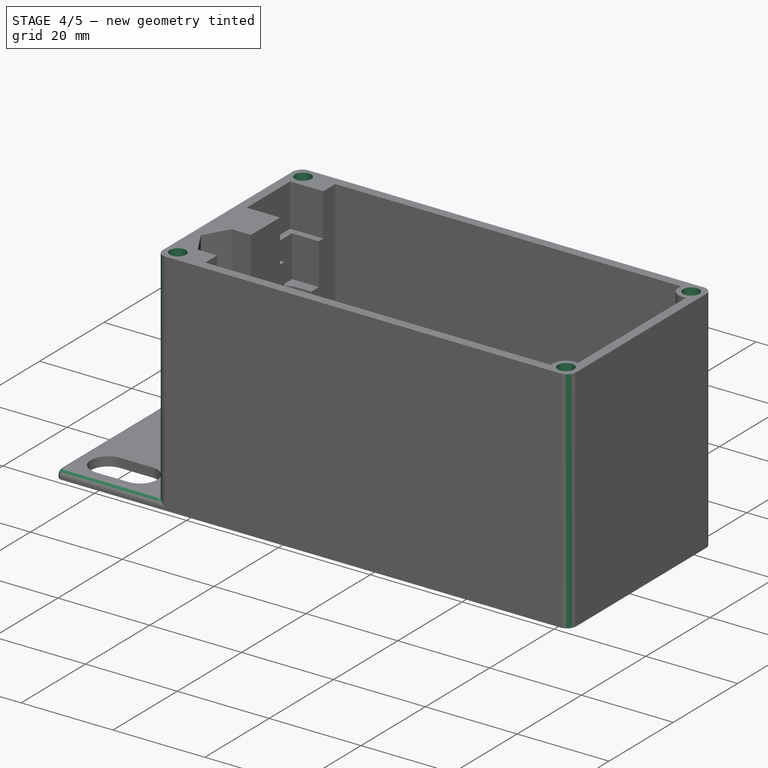
[diagram: stage 4 of 5 — iso view after this stage's code; geometry added in this stage tinted green]
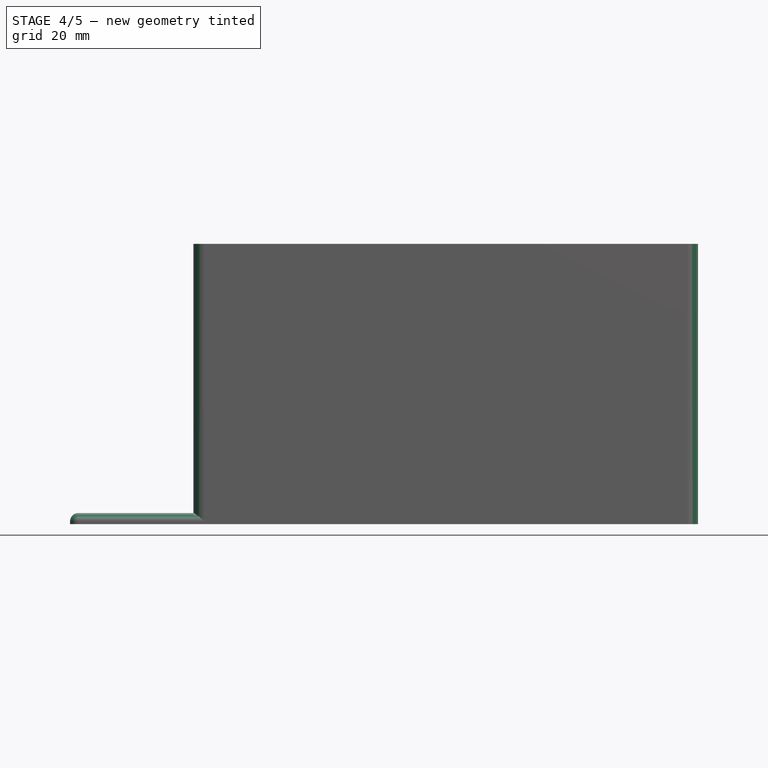
[diagram: stage 4 of 5 — front view after this stage's code; geometry added in this stage tinted green]
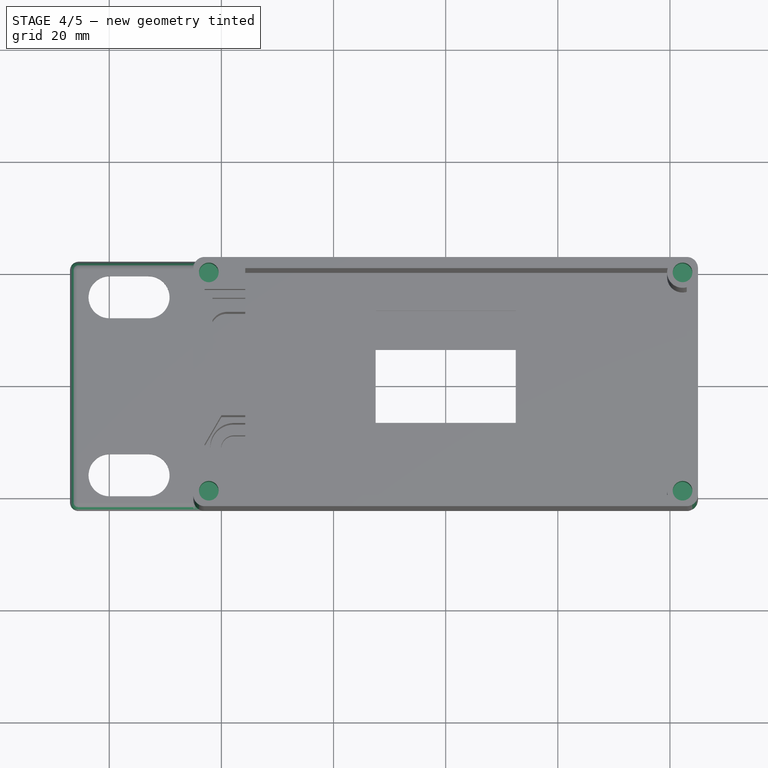
[diagram: stage 4 of 5 — top view after this stage's code; geometry added in this stage tinted green]
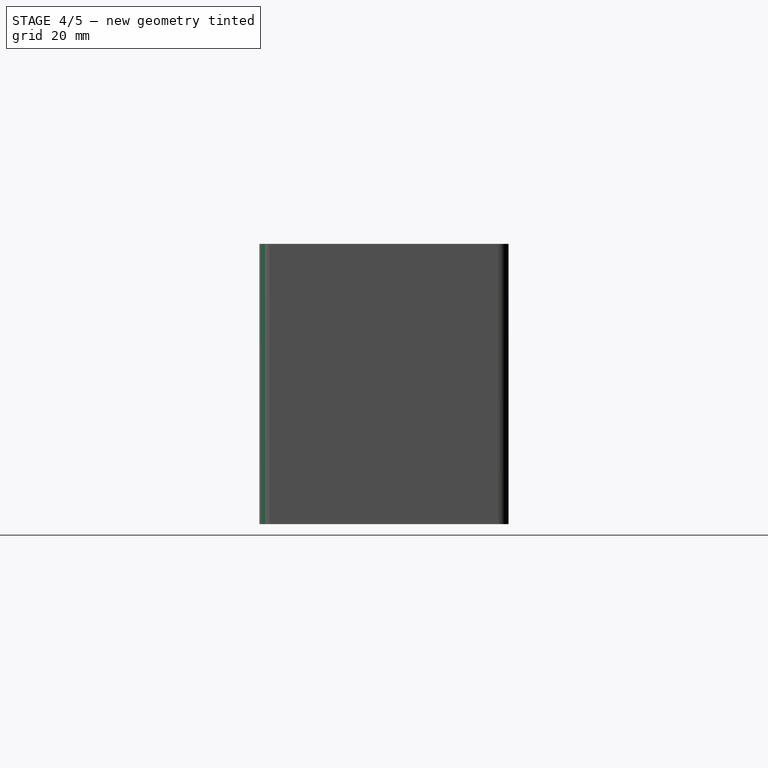
[diagram: stage 4 of 5 — right view after this stage's code; geometry added in this stage tinted green]
FEATURE [Sketcher::SketchObject] Sketch012  label="Screw hole"
  FullyConstrained = true
  MapMode = 5
  Placement = pos=(0,0,50) rot=(0,0,1;0rad)
  Support = -> [Fusion005]
  expr: Constraints[10] = Sketch011.Constraints[10]
  expr: Constraints[11] = Sketch011.Constraints[11]
  expr: Constraints[12] = Sketch011.Constraints[12]
  expr: Constraints[8] = Sketch011.Constraints[8]
  expr: Constraints[9] = Sketch011.Constraints[9]
  sketch-geometry (6):
    g0: LineSegment StartX=-45 StartY=22.225 StartZ=0 EndX=45 EndY=22.225 EndZ=0
    g1: LineSegment StartX=45 StartY=22.225 StartZ=0 EndX=45 EndY=-22.225 EndZ=0
    g2: LineSegment StartX=45 StartY=-22.225 StartZ=0 EndX=-45 EndY=-22.225 EndZ=0
    g3: LineSegment StartX=-45 StartY=-22.225 StartZ=0 EndX=-45 EndY=22.225 EndZ=0
    g4: Circle CenterX=-42.25 CenterY=19.475 CenterZ=0 NormalX=0 NormalY=0 NormalZ=1 AngleXU=0 Radius=2.75
    g5: Circle CenterX=-42.25 CenterY=19.475 CenterZ=0 NormalX=0 NormalY=0 NormalZ=1 AngleXU=0 Radius=1.75
  constraints (15):
    c: Coincident(g0,g1)
    c: Coincident(g1,g2)
    c: Coincident(g2,g3)
    c: Coincident(g3,g0)
    c: Horizontal(g2)
    c: Vertical(g1)
    c: Symmetric(g0,g2,g-1)
    c: Symmetric(g0,g0,g-2)
    c: DistanceX(g0,g0) = 90
    c: DistanceY(g1,g1) = 44.45
    c: Diameter(g4) = 5.5
    c: DistanceY(g4,g0) = 2.75
    c: DistanceX(g0,g4) = 2.75
    c: Coincident(g5,g4)
    c: Diameter(g5) = 3.5
FEATURE [Part::Extrusion] Extrude012
  Base = -> Sketch012
  Dir = (0,0,1)
  DirMode = 2
  FaceMakerClass = Part::FaceMakerBullseye
  LengthFwd = 10
  LengthRev = 0
  Reversed = true
  Solid = true
  Symmetric = false
FEATURE [Part::Mirroring] Part__Mirroring002  label="Extrude012 (Mirror #3)"
  Base = (0,0,0)
  Normal = (0,1,0)
  Source = -> Extrude012
FEATURE [Part::MultiFuse] Fusion002
  Shapes = -> [Part__Mirroring002,Extrude012]
FEATURE [Part::Mirroring] Part__Mirroring003  label="Fusion002 (Mirror #4)"
  Base = (0,0,0)
  Normal = (1,0,0)
  Source = -> Fusion002
FEATURE [Part::MultiFuse] Fusion003  label="Screw holes"
  Shapes = -> [Part__Mirroring003,Fusion002]
FEATURE [Part::Cut] Cut009  label="Core with screw holes"
  Base = -> Fusion005
  Tool = -> Fusion003
FEATURE [Part::MultiFuse] Fusion006  label="Core with lateral rack mount"
  Shapes = -> [Cut009,Extrude013]
FEATURE [Part::Fillet] Fillet
  Base = -> Fusion006
  Edges = 4 edges r=2: [Edge8,Edge70,Edge73,Edge169]
FEATURE [Part::Fillet] Fillet001
  Base = -> Fillet
  Edges = 5 edges r=1.5: [Edge18,Edge19,Edge20,Edge33,Edge84]
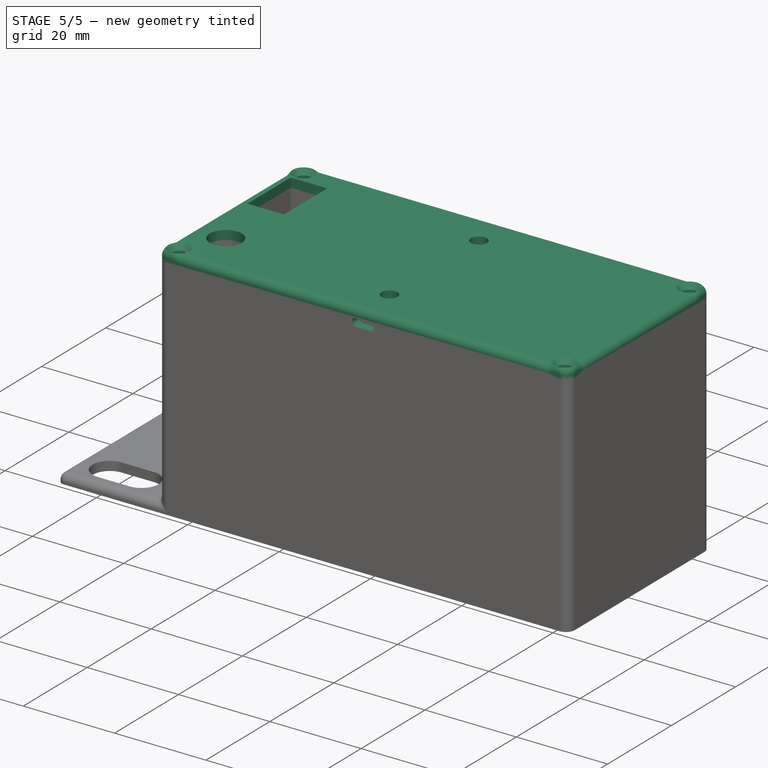
[diagram: stage 5 of 5 — iso view after this stage's code; geometry added in this stage tinted green]
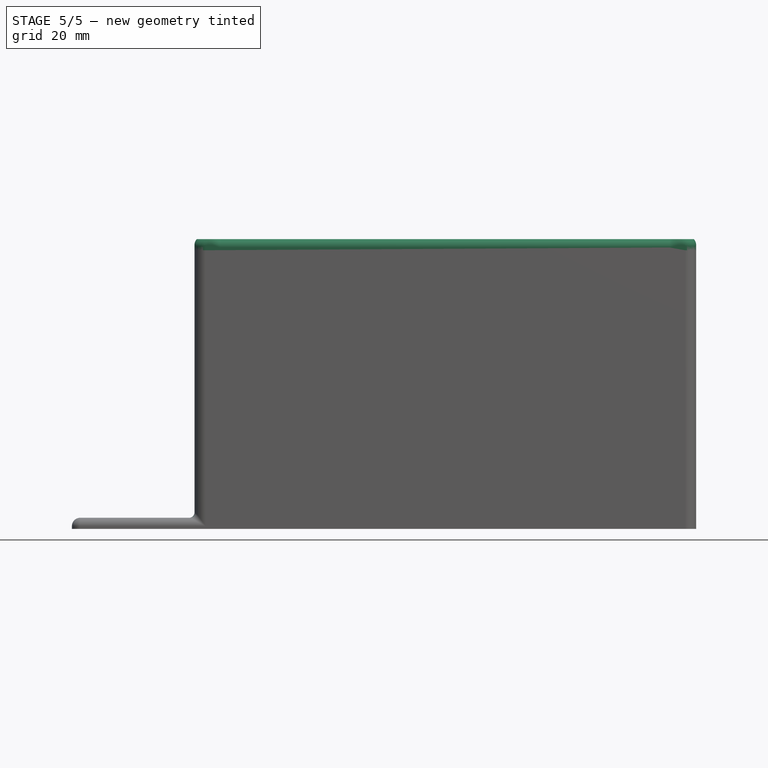
[diagram: stage 5 of 5 — front view after this stage's code; geometry added in this stage tinted green]
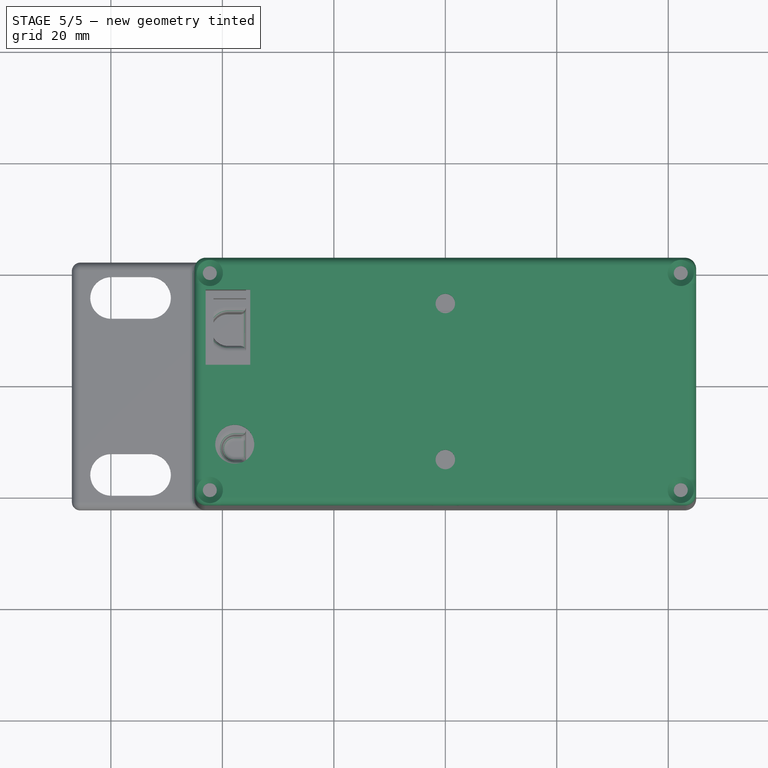
[diagram: stage 5 of 5 — top view after this stage's code; geometry added in this stage tinted green]
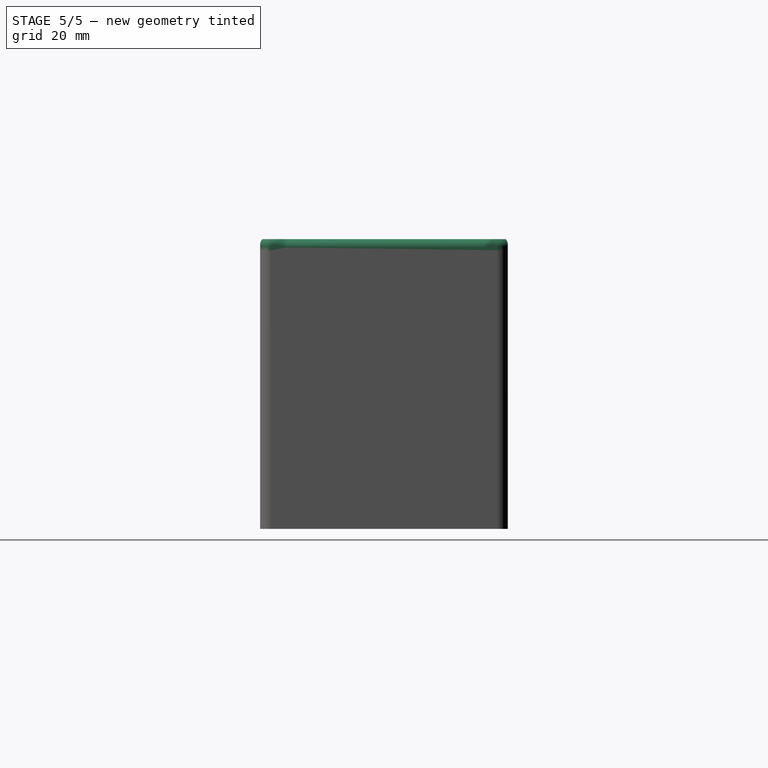
[diagram: stage 5 of 5 — right view after this stage's code; geometry added in this stage tinted green]
FEATURE [Sketcher::SketchObject] Sketch014  label="Cover"
  FullyConstrained = true
  MapMode = 5
  Placement = pos=(0,0,50) rot=(0,0,1;0rad)
  Support = -> [Fusion006]
  expr: Constraints[23] = Sketch005.Constraints[13]
  expr: Constraints[24] = Sketch005.Constraints[14]
  expr: Constraints[25] = Sketch005.Constraints[15]
  expr: Constraints[26] = Sketch005.Constraints[16]
  expr: Constraints[27] = Sketch005.Constraints[17]
  expr: Constraints[36] = Sketch008.Constraints[8]
  expr: Constraints[37] = Sketch008.Constraints[9]
  expr: Constraints[46] = Sketch008.Constraints[18]
  expr: Constraints[47] = Sketch008.Constraints[19]
  expr: Constraints[48] = Sketch008.Constraints[20]
  expr: Constraints[49] = Sketch008.Constraints[21]
  expr: Constraints[65] = Sketch012.Constraints[8]
  expr: Constraints[66] = Sketch012.Constraints[9]
  expr: Constraints[67] = Sketch012.Constraints[10]
  expr: Constraints[68] = Sketch012.Constraints[11]
  expr: Constraints[69] = Sketch012.Constraints[12]
  expr: Constraints[72] = Constraints[71]
  expr: Constraints[73] = Constraints[71]
  expr: Constraints[74] = Constraints[71]
  expr: Constraints[8] = Sketch.Constraints[8]
  expr: Constraints[9] = Sketch.Constraints[9]
  sketch-geometry (32):
    g0: LineSegment StartX=-45 StartY=22.225 StartZ=0 EndX=45 EndY=22.225 EndZ=0
    g1: LineSegment StartX=45 StartY=22.225 StartZ=0 EndX=45 EndY=-22.225 EndZ=0
    g2: LineSegment StartX=45 StartY=-22.225 StartZ=0 EndX=-45 EndY=-22.225 EndZ=0
    g3: LineSegment StartX=-45 StartY=-22.225 StartZ=0 EndX=-45 EndY=22.225 EndZ=0
    g4: LineSegment StartX=-40 StartY=-6 StartZ=0 EndX=-35.5622 EndY=-6 EndZ=0
    g5: LineSegment StartX=-35.5622 StartY=-6 StartZ=0 EndX=-32.5311 EndY=-11.25 EndZ=0
    g6: LineSegment StartX=-32.5311 StartY=-11.25 StartZ=0 EndX=-35.5622 EndY=-16.5 EndZ=0
    g7: LineSegment StartX=-35.5622 StartY=-16.5 StartZ=0 EndX=-40 EndY=-16.5 EndZ=0
    g8: LineSegment StartX=-40 StartY=-16.5 StartZ=0 EndX=-43.0311 EndY=-11.25 EndZ=0
    g9: LineSegment StartX=-43.0311 StartY=-11.25 StartZ=0 EndX=-40 EndY=-6 EndZ=0
    g10: LineSegment StartX=-43 StartY=16.5 StartZ=0 EndX=-35 EndY=16.5 EndZ=0
    g11: LineSegment StartX=-35 StartY=16.5 StartZ=0 EndX=-35 EndY=3 EndZ=0
    g12: LineSegment StartX=-35 StartY=3 StartZ=0 EndX=-43 EndY=3 EndZ=0
    g13: LineSegment StartX=-43 StartY=3 StartZ=0 EndX=-43 EndY=16.5 EndZ=0
    g14: LineSegment StartX=-45 StartY=22.225 StartZ=0 EndX=45 EndY=22.225 EndZ=0
    g15: LineSegment StartX=45 StartY=22.225 StartZ=0 EndX=45 EndY=-22.225 EndZ=0
    g16: LineSegment StartX=45 StartY=-22.225 StartZ=0 EndX=-45 EndY=-22.225 EndZ=0
    g17: LineSegment StartX=-45 StartY=-22.225 StartZ=0 EndX=-45 EndY=22.225 EndZ=0
    g18: LineSegment StartX=-43.0311 StartY=-11.25 StartZ=0 EndX=-32.5311 EndY=-11.25 EndZ=0
    g19: LineSegment StartX=-37.7811 StartY=-6 StartZ=0 EndX=-37.7811 EndY=-16.5 EndZ=0
    g20: Circle CenterX=-37.7811 CenterY=-11.25 CenterZ=0 NormalX=0 NormalY=0 NormalZ=1 AngleXU=0 Radius=3.5
    g21: LineSegment StartX=-45 StartY=22.225 StartZ=0 EndX=45 EndY=22.225 EndZ=0
    g22: LineSegment StartX=45 StartY=22.225 StartZ=0 EndX=45 EndY=-22.225 EndZ=0
    g23: LineSegment StartX=45 StartY=-22.225 StartZ=0 EndX=-45 EndY=-22.225 EndZ=0
    g24: LineSegment StartX=-45 StartY=-22.225 StartZ=0 EndX=-45 EndY=22.225 EndZ=0
    g25: Circle CenterX=-42.25 CenterY=19.475 CenterZ=0 NormalX=0 NormalY=0 NormalZ=1 AngleXU=0 Radius=2.75
    g26: Circle CenterX=-42.25 CenterY=19.475 CenterZ=0 NormalX=0 NormalY=0 NormalZ=1 AngleXU=0 Radius=1.25
    g27: Circle CenterX=42.25 CenterY=19.48 CenterZ=0 NormalX=0 NormalY=0 NormalZ=1 AngleXU=0 Radius=1.25
    g28: Circle CenterX=42.25 CenterY=-19.47 CenterZ=0 NormalX=0 NormalY=0 NormalZ=1 AngleXU=0 Radius=1.25
    g29: Circle CenterX=-42.25 CenterY=-19.475 CenterZ=0 NormalX=0 NormalY=0 NormalZ=1 AngleXU=0 Radius=1.25
    g30: Circle CenterX=0 CenterY=-14 CenterZ=0 NormalX=0 NormalY=0 NormalZ=1 AngleXU=0 Radius=1.75
    g31: Circle CenterX=0 CenterY=14 CenterZ=0 NormalX=0 NormalY=0 NormalZ=1 AngleXU=0 Radius=1.75
  constraints (86):
    c: Coincident(g0,g1)
    c: Coincident(g1,g2)
    c: Coincident(g2,g3)
    c: Coincident(g3,g0)
    c: Horizontal(g2)
    c: Vertical(g1)
    c: Symmetric(g0,g2,g-1)
    c: Symmetric(g0,g0,g-2)
    c: DistanceX(g0,g0) = 90
    c: DistanceY(g1,g1) = 44.45
    c: Horizontal(g4)
    c: Coincident(g5,g4)
    c: Coincident(g6,g5)
    c: Coincident(g7,g6)
    c: Coincident(g8,g7)
    c: Coincident(g9,g4)
    c: Parallel(g9,g6)
    c: Parallel(g4,g7)
    c: Parallel(g5,g8)
    c: Coincident(g9,g8)
    c: Vertical(g4,g7)
    c: Vertical(g4,g6)
    c: Horizontal(g5,g8)
    c: DistanceX(g8,g5) = 10.5
    c: DistanceY(g6,g4) = 10.5
    c: Angle(g9,g4) = 2.0944
    c: DistanceY(g4,g-1) = 6
    c: DistanceX(g4,g-1) = 40
    c: Coincident(g10,g11)
    c: Coincident(g11,g12)
    c: Coincident(g12,g13)
    c: Coincident(g13,g10)
    c: Horizontal(g10)
    c: Horizontal(g12)
    c: Vertical(g11)
    c: Vertical(g13)
    c: DistanceX(g10,g10) = 8
    c: DistanceY(g13,g13) = 13.5
    c: Coincident(g14,g15)
    c: Coincident(g15,g16)
    c: Coincident(g16,g17)
    c: Coincident(g17,g14)
    c: Horizontal(g16)
    c: Vertical(g15)
    c: Symmetric(g14,g16,g-1)
    c: Symmetric(g14,g14,g-2)
    c: DistanceX(g14,g14) = 90
    c: DistanceY(g15,g15) = 44.45
    c: DistanceX(g14,g10) = 2
    c: DistanceY(g-1,g11) = 3
    c: Coincident(g18,g8)
    c: Coincident(g18,g5)
    c: Symmetric(g4,g4,g19)
    c: Symmetric(g6,g7,g19)
    c: PointOnObject(g20,g18)
    c: PointOnObject(g20,g19)
    c: Diameter(g20) = 7
    c: Coincident(g21,g22)
    c: Coincident(g22,g23)
    c: Coincident(g23,g24)
    c: Coincident(g24,g21)
    c: Horizontal(g23)
    c: Vertical(g22)
    c: Symmetric(g21,g23,g-1)
    c: Symmetric(g21,g21,g-2)
    c: DistanceX(g21,g21) = 90
    c: DistanceY(g22,g22) = 44.45
    c: Diameter(g25) = 5.5
    c: DistanceY(g25,g21) = 2.75
    c: DistanceX(g21,g25) = 2.75
    c: Coincident(g26,g25)
    c: Diameter(g26) = 2.5
    c: Diameter(g27) = 2.5
    c: Diameter(g29) = 2.5
    c: Diameter(g28) = 2.5
    c: DistanceY(g29,g26) = 38.95
    c: DistanceY(g28,g27) = 38.95
    c: DistanceX(g26,g27) = 84.5
    c: DistanceX(g29,g28) = 84.5
    c: DistanceY(g-1,g27) = 19.48
    c: DistanceX(g26,g28) = 84.5
    c: PointOnObject(g30,g-2)
    c: Symmetric(g31,g30,g-1)
    c: DistanceY(g30,g31) = 28
    c: Diameter(g31) = 3.5
    c: Diameter(g30) = 3.5
FEATURE [Part::Extrusion] Extrude014  label="Cover001"
  Base = -> Sketch014
  Dir = (0,0,1)
  DirMode = 2
  FaceMakerClass = Part::FaceMakerBullseye
  LengthFwd = 2
  LengthRev = 0
  Solid = true
  Symmetric = false
FEATURE [Part::Fillet] Fillet002
  Base = -> Fillet001
  Edges = 1 edges r=1: [Edge47]
FEATURE [Part::Fillet] Fillet003  label="Box"
  Base = -> Fillet002
  Edges = 14 edges r=1: [Edge179,Edge180,Edge181,Edge190,Edge191,Edge192,Edge264,Edge265,Edge273,Edge275,Edge284,Edge285,Edge286,Edge292]
FEATURE [Part::Fillet] Fillet004
  Base = -> Extrude014
  Edges = 4 edges r=2: [Edge1,Edge2,Edge5,Edge8]
FEATURE [Part::Chamfer] Chamfer
  Base = -> Fillet004
  Edges = 4 edges r=1.1: [Edge39,Edge40,Edge41,Edge42]
FEATURE [Part::Fillet] Fillet005  label="Cover002"
  Base = -> Chamfer
  Edges = 4 edges r=1.5: [Edge2,Edge4,Edge6,Edge8]
FEATURE [Sketcher::SketchObject] Sketch015  label="Temp wire hole"
  ExternalGeometry = -> [Sketch014]
  FullyConstrained = true
  MapMode = 5
  Placement = pos=(0,-22.225,0) rot=(1,0,0;1.5708rad)
  Support = -> [Fillet003]
  sketch-geometry (4):
    g0: LineSegment StartX=-2.35 StartY=50 StartZ=0 EndX=2.35 EndY=50 EndZ=0
    g1: LineSegment StartX=2.35 StartY=50 StartZ=0 EndX=2.35 EndY=48.3 EndZ=0
    g2: LineSegment StartX=2.35 StartY=48.3 StartZ=0 EndX=-2.35 EndY=48.3 EndZ=0
    g3: LineSegment StartX=-2.35 StartY=48.3 StartZ=0 EndX=-2.35 EndY=50 EndZ=0
  constraints (11):
    c: Coincident(g0,g1)
    c: Coincident(g1,g2)
    c: Coincident(g2,g3)
    c: Coincident(g3,g0)
    c: Horizontal(g2)
    c: Vertical(g1)
    c: Vertical(g3)
    c: DistanceX(g0,g0) = 4.7
    c: DistanceY(g3,g3) = 1.7
    c: PointOnObject(g0,g-3)
    c: Symmetric(g0,g0,g-2)
FEATURE [PartDesign::Body] Body
  Group = -> [Sketch,Sketch001,Sketch002,Sketch004,Sketch005,Sketch006,Sketch007,Sketch008,Sketch009,Sketch010,Sketch011,Sketch012,Sketch013,Sketch014,Sketch015]
  Origin = -> Origin
FEATURE [Part::Extrusion] Extrude016  label="Temp wire hole extrusion"
  Base = -> Sketch015
  Dir = (0,-1,2e-16)
  DirMode = 2
  FaceMakerClass = Part::FaceMakerBullseye
  LengthFwd = 10
  LengthRev = 0
  Reversed = true
  Solid = true
  Symmetric = false
FEATURE [Part::Cut] Cut010  label="Box with temp hole"
  Base = -> Fillet003
  Tool = -> Extrude016
FEATURE [Part::Fillet] Fillet006  label="Box001"
  Base = -> Cut010
  Edges = 2 edges r=1: [Edge140,Edge179]
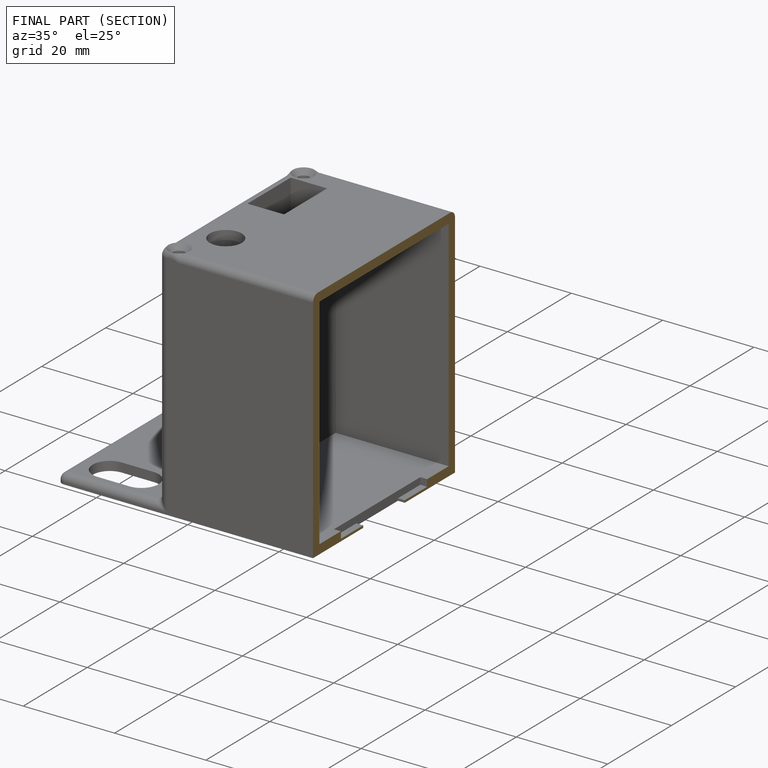
[diagram: finished part — half-section view (interior)]
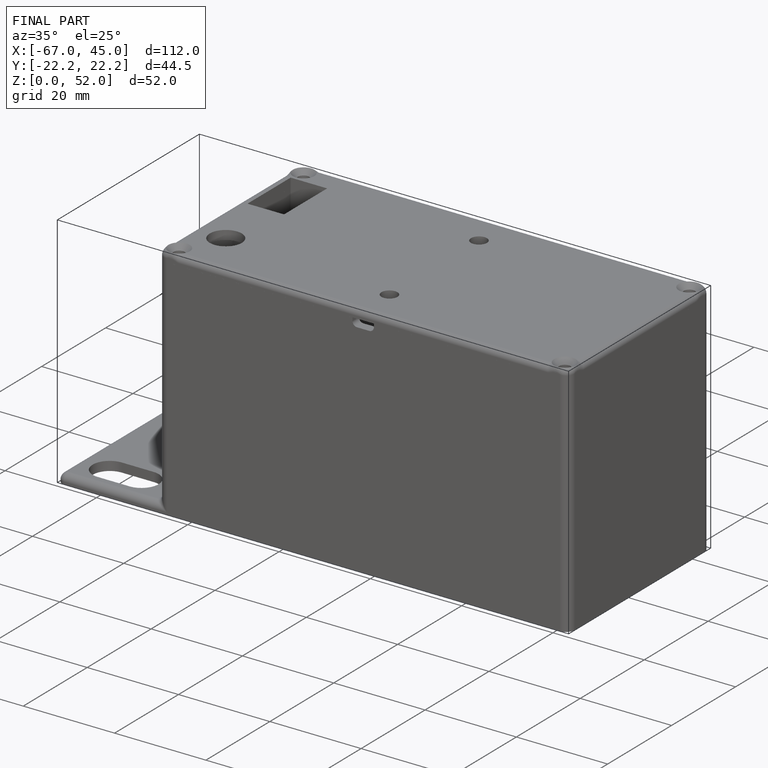
[diagram: finished part — iso view with bounding-box wireframe]
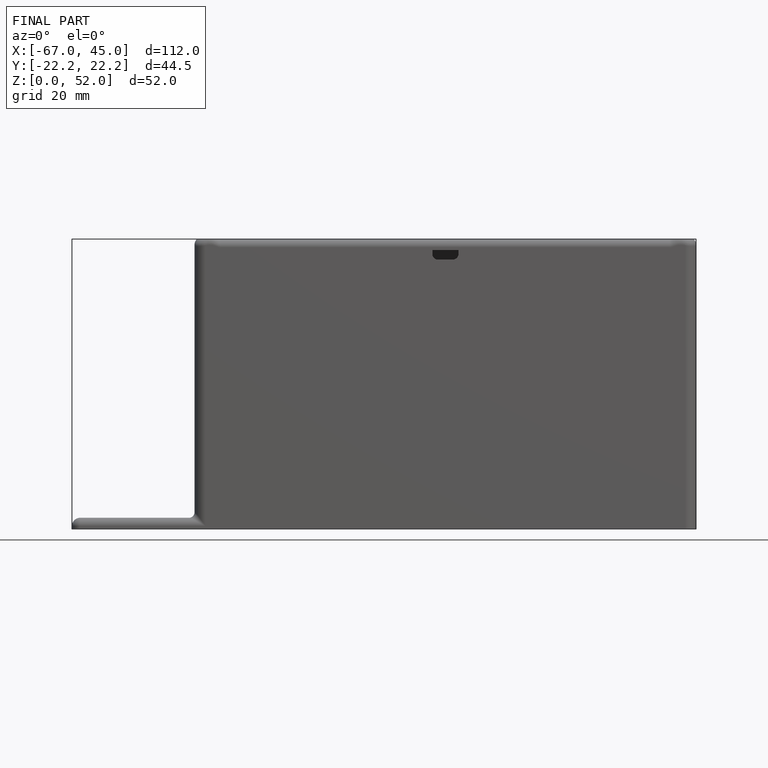
[diagram: finished part — front view with bounding-box wireframe]
